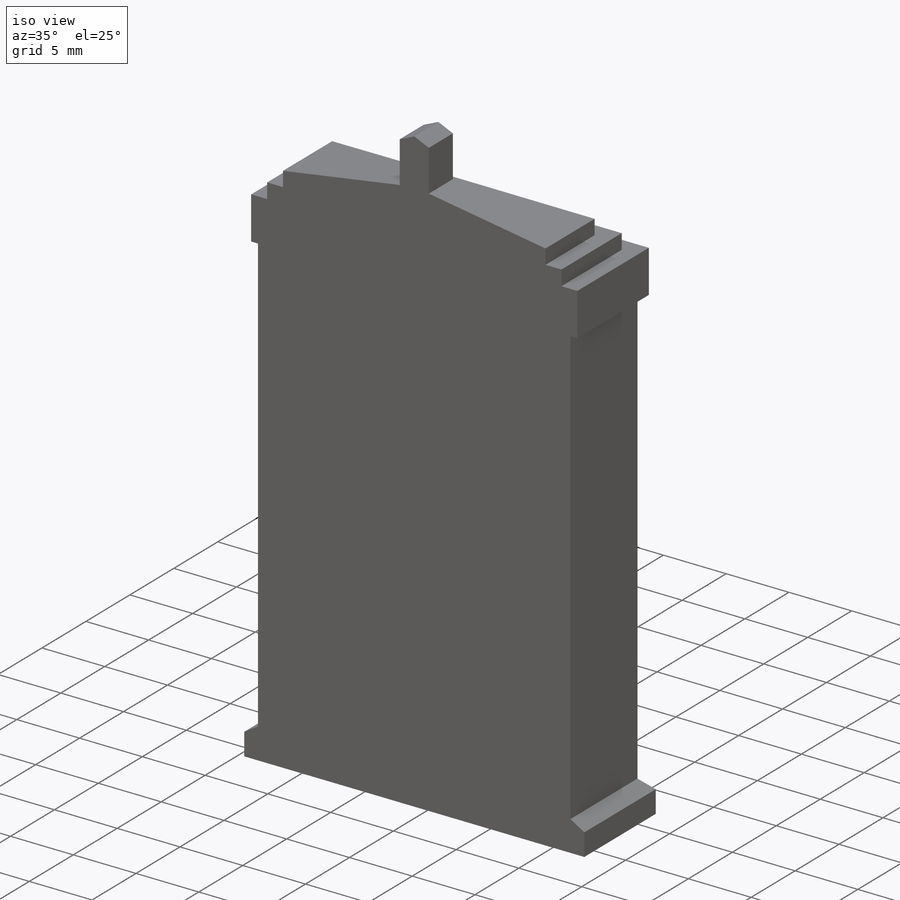
[diagram: iso view]
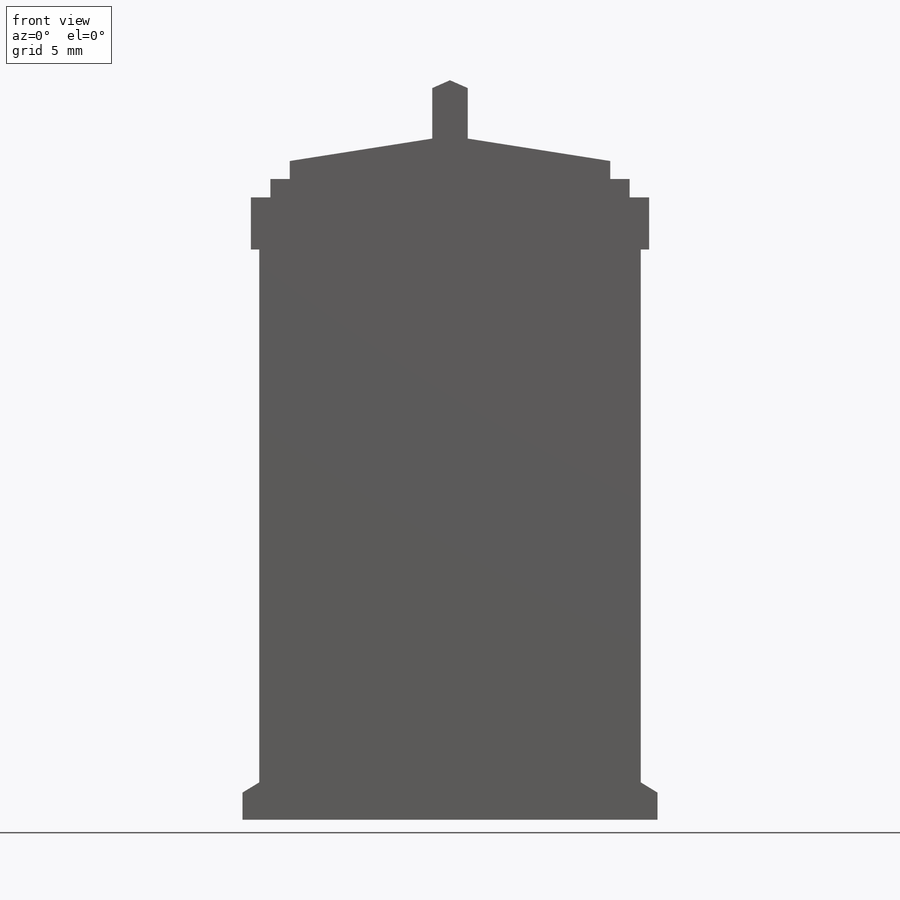
[diagram: front view]
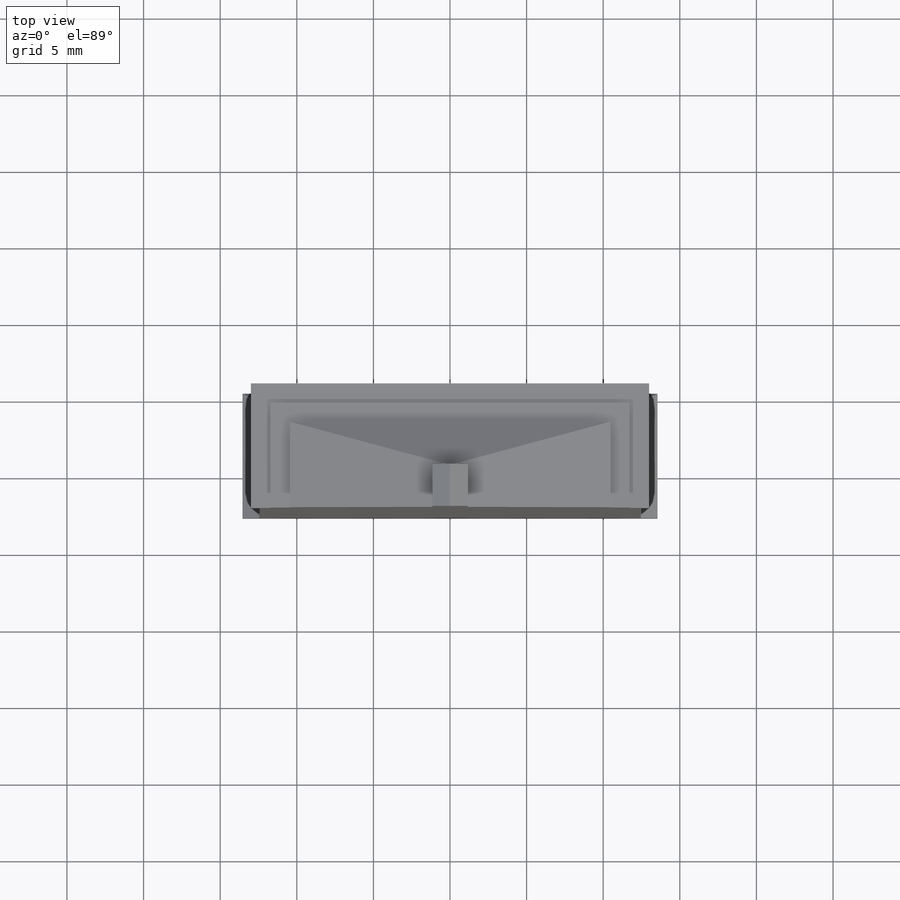
[diagram: top view]
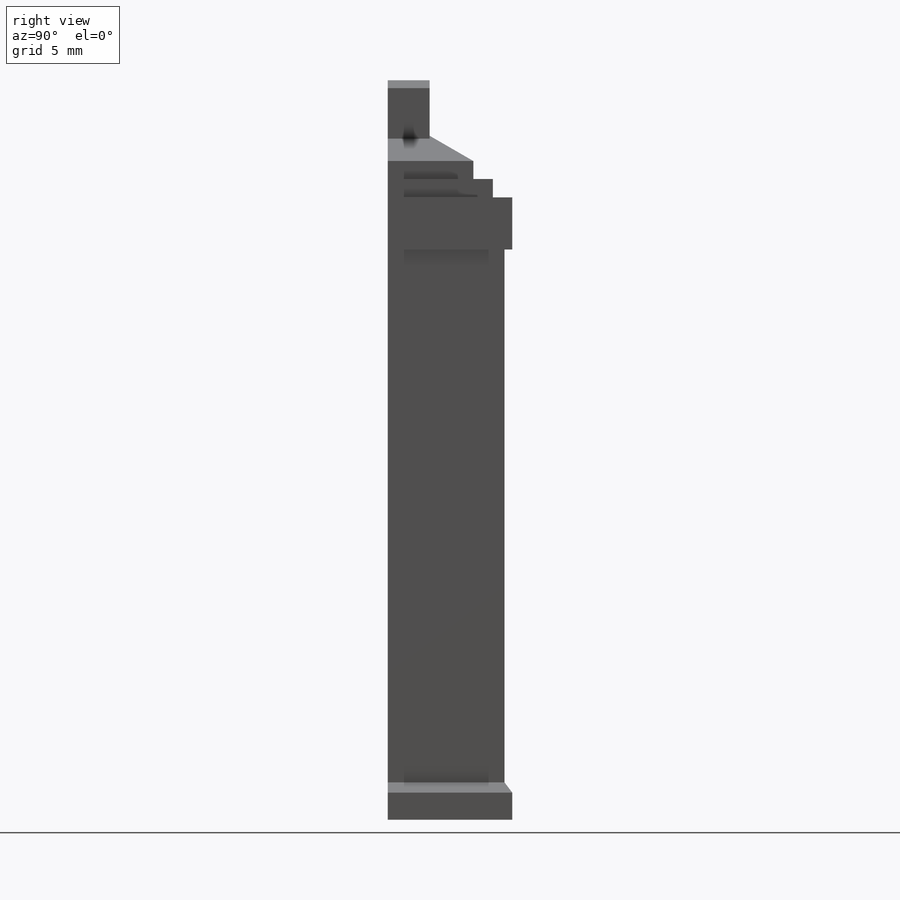
[diagram: right view]
SOLIDWORKS PART (.sldprt)
format: sldprt  version: not decoded by parser v0  size: 874,496 bytes
history: native  units: mm
features: sketch x17, cut_extrude x10, extrude x6, material x1, chamfer x1, plane x1 (+12 scaffold rows collapsed)
feature tree (48):
  scaffold x12  (default folders/planes/origin — collapsed)
  material  "Material <not specified>"
  sketch  "Sketch1"  dims[D1=48.26mm D2=24.892mm D3=~21.688097mm D4=1.27mm D5=1.27mm]
  sketch  "Sketch3"  dims[D1=9.652mm D2=9.652mm D3=0.508mm D4=~21.688097mm]
  sketch  "Sketch2"  dims[c1.D1=0.889mm c1.D2=0.889mm c1.D3=~0.267746mm c1.D4=0.2667mm c1.D5=~6.726333mm c1.D6=~1.613048mm c1.D7=~0.396875mm c2.D3=~0.396875mm c2.D8=~0.295701mm c3.D3=0.889mm c3.D7=0.508mm c3.D8=0.508mm c3.D9=0.2286mm c3.D10=~1.940386mm]
  extrude  "Boss-Extrude1"  Depth=7.62mm
  cut_extrude  "Cut-Extrude3"  Depth=1.27mm
  cut_extrude  "Cut-Extrude4"  Depth=2.032mm
  sketch  "Sketch5"
  extrude  "Boss-Extrude3"  Depth=0.508mm
  sketch  "Sketch6"  dims[D1=0.508mm D2=0.508mm]
  cut_extrude  "Cut-Extrude5"  Depth=0.508mm
  sketch  "Sketch7"
  cut_extrude  "Cut-Extrude6"  Depth=0.508mm
  sketch  "Sketch8"
  extrude  "Boss-Extrude4"  Depth=0.508mm
  sketch  "Sketch9"
  extrude  "Boss-Extrude5"  [1 undecoded]
  sketch  "Sketch10"
  extrude  "Boss-Extrude6"  Depth=0.508mm
  sketch  "Sketch11"
  cut_extrude  "Cut-Extrude7"  Depth=0.762mm
  chamfer  "Chamfer1"  Distance=0.508mm Angle=45deg
  sketch  "Sketch12"
  cut_extrude  "Cut-Extrude8"  Depth=1.27mm
  sketch  "Sketch13"
  plane  "Plane1"
  sketch  "Sketch14"
  cut_extrude  "Cut-Extrude9"  [1 undecoded]
  sketch  "Sketch15"  dims[D1=48.26mm]
  extrude  "Boss-Extrude8"  [1 undecoded]
  sketch  "Sketch17"  dims[D1=0.508mm D2=0.508mm]
  cut_extrude  "Cut-Extrude11"  Depth=0.508mm
  sketch  "Sketch18"
  sketch  "Sketch19"
  cut_extrude  "Cut-Extrude12"  Depth=0.508mm
  cut_extrude  "Cut-Extrude13"  Depth=0.254mm
decode coverage: 20 of 34 modeling features carry decoded parameters
note: ~ marks probable driven/reference dimensions
note: 3 parameter values undecoded
summary: no parameter record found for 3 features
note: suppression state not decoded; provenance and decode notes live in map.json
